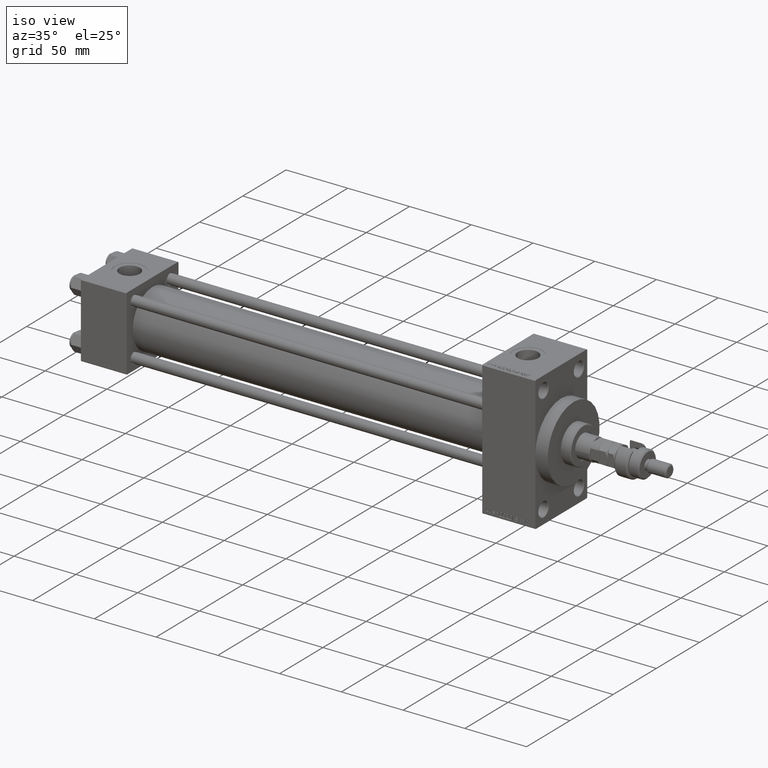
[diagram: clean part render]
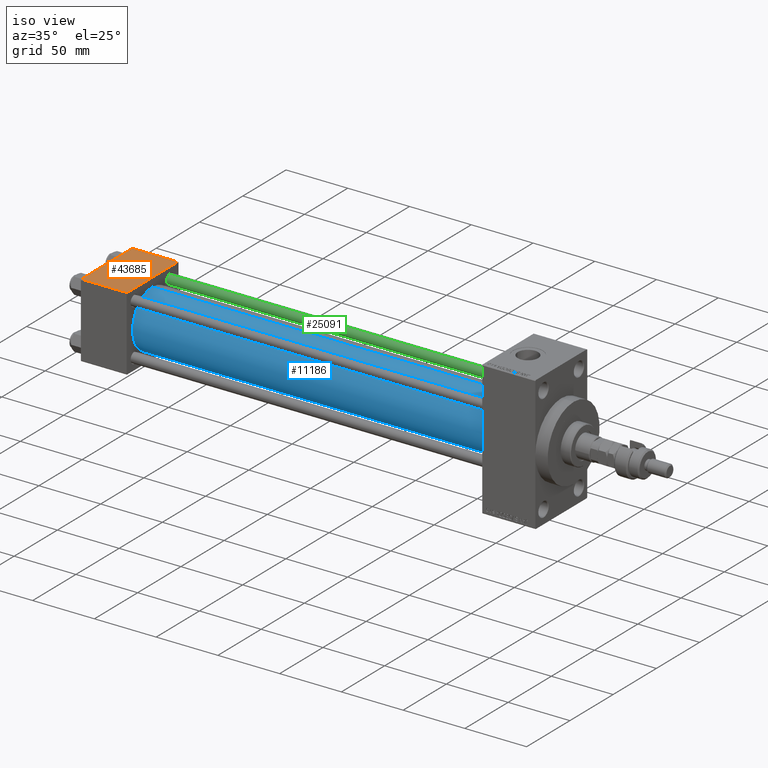
[diagram: same view with three faces highlighted in distinct colors, each labeled with its STEP entity id]
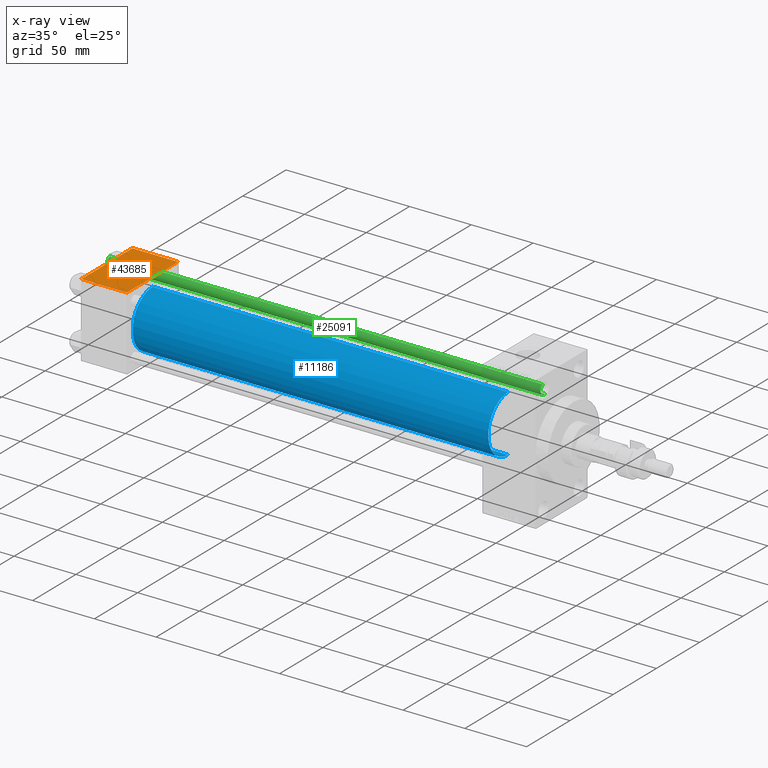
[diagram: x-ray of the same camera — body ghosted, the three highlighted faces saturated]
A machine part, iso view with three faces highlighted in distinct colors.
The next image is the same camera in x-ray (body ghosted, the three faces saturated) — at least one of them is partly hidden behind the body in this view.
Their STEP definitions:

[orange] entity #43685 — the highlighted planar face has unit normal (0, 0, -1).
#1657 = ORIENTED_EDGE ( 'NONE', *, *, #44762, .T. ) ;
#1691 = VECTOR ( 'NONE', #25255, 1000.000000000000000 ) ;
#1908 = DIRECTION ( 'NONE',  ( 0.000000000000000000, -1.000000000000000000, -1.156482317317871725E-16 ) ) ;
#3038 = VERTEX_POINT ( 'NONE', #14056 ) ;
#3897 = AXIS2_PLACEMENT_3D ( 'NONE', #9711, #41051, #37625 ) ;
#5168 = CARTESIAN_POINT ( 'NONE',  ( 37.00000000000000000, -29.49999999999998579, 29.99999999999999289 ) ) ;
#5217 = CARTESIAN_POINT ( 'NONE',  ( 37.00000000000000000, -29.50000000000000000, 29.99999999999999289 ) ) ;
#6295 = CARTESIAN_POINT ( 'NONE',  ( 18.50000000000000000, -3.469446951953614978E-15, 29.99999999999999645 ) ) ;
#8222 = VERTEX_POINT ( 'NONE', #16243 ) ;
#8398 = VERTEX_POINT ( 'NONE', #5168 ) ;
#9711 = CARTESIAN_POINT ( 'NONE',  ( 18.50000000000000000, -3.469446951953614978E-15, 29.99999999999999645 ) ) ;
#9937 = PLANE ( 'NONE',  #21890 ) ;
#10647 = EDGE_CURVE ( 'NONE', #8222, #26493, #51101, .T. ) ;
#10779 = CARTESIAN_POINT ( 'NONE',  ( 0.000000000000000000, -29.49999999999998579, 29.99999999999999289 ) ) ;
#12998 = EDGE_CURVE ( 'NONE', #52115, #8398, #49845, .T. ) ;
#14056 = CARTESIAN_POINT ( 'NONE',  ( 30.50000000000000000, -3.469446951953614978E-15, 29.99999999999999645 ) ) ;
#14510 = DIRECTION ( 'NONE',  ( 0.000000000000000000, -1.000000000000000000, -1.156482317317871725E-16 ) ) ;
#14562 = EDGE_CURVE ( 'NONE', #52115, #8222, #41313, .T. ) ;
#15217 = EDGE_LOOP ( 'NONE', ( #41175, #37720 ) ) ;
#15259 = EDGE_LOOP ( 'NONE', ( #18696, #1657, #28492, #51141 ) ) ;
#16243 = CARTESIAN_POINT ( 'NONE',  ( 0.000000000000000000, 29.49999999999999289, 30.00000000000000000 ) ) ;
#16323 = CARTESIAN_POINT ( 'NONE',  ( 37.00000000000000000, 29.49999999999999289, 30.00000000000000000 ) ) ;
#18448 = EDGE_CURVE ( 'NONE', #41944, #3038, #42017, .T. ) ;
#18696 = ORIENTED_EDGE ( 'NONE', *, *, #10647, .T. ) ;
#20339 = CARTESIAN_POINT ( 'NONE',  ( 6.499999999999997335, -1.999870792976790833E-15, 29.99999999999999645 ) ) ;
#21890 = AXIS2_PLACEMENT_3D ( 'NONE', #42061, #22305, #29942 ) ;
#22305 = DIRECTION ( 'NONE',  ( 0.000000000000000000, 1.156482317317871725E-16, -1.000000000000000000 ) ) ;
#22367 = DIRECTION ( 'NONE',  ( 0.000000000000000000, 0.000000000000000000, 1.000000000000000000 ) ) ;
#24982 = LINE ( 'NONE', #5217, #45351 ) ;
#25255 = DIRECTION ( 'NONE',  ( -1.000000000000000000, 0.000000000000000000, 0.000000000000000000 ) ) ;
#26059 = AXIS2_PLACEMENT_3D ( 'NONE', #6295, #22367, #46588 ) ;
#26493 = VERTEX_POINT ( 'NONE', #10779 ) ;
#28492 = ORIENTED_EDGE ( 'NONE', *, *, #12998, .F. ) ;
#29942 = DIRECTION ( 'NONE',  ( 0.000000000000000000, 1.000000000000000000, 1.156482317317871725E-16 ) ) ;
#33363 = FACE_OUTER_BOUND ( 'NONE', #15259, .T. ) ;
#33929 = CARTESIAN_POINT ( 'NONE',  ( 0.000000000000000000, 29.49999999999999289, 30.00000000000000000 ) ) ;
#34775 = CARTESIAN_POINT ( 'NONE',  ( 0.000000000000000000, 29.99999999999999289, 30.00000000000000000 ) ) ;
#35780 = EDGE_CURVE ( 'NONE', #3038, #41944, #45102, .T. ) ;
#37625 = DIRECTION ( 'NONE',  ( 1.000000000000000000, 0.000000000000000000, 0.000000000000000000 ) ) ;
#37720 = ORIENTED_EDGE ( 'NONE', *, *, #18448, .F. ) ;
#37844 = FACE_BOUND ( 'NONE', #15217, .T. ) ;
#37996 = CARTESIAN_POINT ( 'NONE',  ( 37.00000000000000000, 29.99999999999999289, 30.00000000000000000 ) ) ;
#41051 = DIRECTION ( 'NONE',  ( 0.000000000000000000, 0.000000000000000000, 1.000000000000000000 ) ) ;
#41175 = ORIENTED_EDGE ( 'NONE', *, *, #35780, .F. ) ;
#41212 = VECTOR ( 'NONE', #14510, 1000.000000000000000 ) ;
#41313 = LINE ( 'NONE', #33929, #1691 ) ;
#41944 = VERTEX_POINT ( 'NONE', #20339 ) ;
#42017 = CIRCLE ( 'NONE', #26059, 12.00000000000000000 ) ;
#42061 = CARTESIAN_POINT ( 'NONE',  ( 37.00000000000000000, 29.99999999999999289, 30.00000000000000000 ) ) ;
#43685 = ADVANCED_FACE ( 'NONE', ( #37844, #33363 ), #9937, .F. ) ;
#44762 = EDGE_CURVE ( 'NONE', #26493, #8398, #24982, .T. ) ;
#45102 = CIRCLE ( 'NONE', #3897, 12.00000000000000000 ) ;
#45351 = VECTOR ( 'NONE', #46035, 1000.000000000000000 ) ;
#46035 = DIRECTION ( 'NONE',  ( 1.000000000000000000, 0.000000000000000000, 0.000000000000000000 ) ) ;
#46588 = DIRECTION ( 'NONE',  ( 1.000000000000000000, 0.000000000000000000, 0.000000000000000000 ) ) ;
#47051 = VECTOR ( 'NONE', #1908, 1000.000000000000000 ) ;
#49845 = LINE ( 'NONE', #37996, #47051 ) ;
#51101 = LINE ( 'NONE', #34775, #41212 ) ;
#51141 = ORIENTED_EDGE ( 'NONE', *, *, #14562, .T. ) ;
#52115 = VERTEX_POINT ( 'NONE', #16323 ) ;

[blue] entity #11186 — the highlighted cylindrical surface (edge-blend (fillet) strip) has radius 23 mm, axis along (-1, -0, -0).
#2351 = VERTEX_POINT ( 'NONE', #49997 ) ;
#2843 = VERTEX_POINT ( 'NONE', #39373 ) ;
#5104 = VERTEX_POINT ( 'NONE', #31773 ) ;
#5915 = AXIS2_PLACEMENT_3D ( 'NONE', #46639, #26627, #6607 ) ;
#6607 = DIRECTION ( 'NONE',  ( 0.000000000000000000, 0.000000000000000000, 1.000000000000000000 ) ) ;
#7461 = CARTESIAN_POINT ( 'NONE',  ( 324.9999999999999432, -2.602085213965210642E-15, 0.000000000000000000 ) ) ;
#11186 = ADVANCED_FACE ( 'NONE', ( #23518 ), #39579, .T. ) ;
#11231 = LINE ( 'NONE', #40688, #26888 ) ;
#11945 = DIRECTION ( 'NONE',  ( 0.000000000000000000, 0.000000000000000000, -1.000000000000000000 ) ) ;
#12346 = EDGE_CURVE ( 'NONE', #5104, #2843, #11231, .T. ) ;
#12994 = VECTOR ( 'NONE', #19414, 1000.000000000000000 ) ;
#13658 = ORIENTED_EDGE ( 'NONE', *, *, #31946, .F. ) ;
#14399 = CIRCLE ( 'NONE', #30348, 23.00000000000000000 ) ;
#14879 = ORIENTED_EDGE ( 'NONE', *, *, #25236, .F. ) ;
#18259 = CARTESIAN_POINT ( 'NONE',  ( 324.9999999999999432, -2.602085213965210642E-15, 0.000000000000000000 ) ) ;
#18897 = LINE ( 'NONE', #43386, #12994 ) ;
#19414 = DIRECTION ( 'NONE',  ( -1.000000000000000000, -0.000000000000000000, -0.000000000000000000 ) ) ;
#20662 = DIRECTION ( 'NONE',  ( -1.000000000000000000, -0.000000000000000000, -0.000000000000000000 ) ) ;
#23271 = DIRECTION ( 'NONE',  ( 1.000000000000000000, 0.000000000000000000, 0.000000000000000000 ) ) ;
#23518 = FACE_OUTER_BOUND ( 'NONE', #25964, .T. ) ;
#25236 = EDGE_CURVE ( 'NONE', #5104, #41510, #14399, .T. ) ;
#25964 = EDGE_LOOP ( 'NONE', ( #13658, #14879, #28362, #50197 ) ) ;
#26627 = DIRECTION ( 'NONE',  ( 1.000000000000000000, -0.000000000000000000, 0.000000000000000000 ) ) ;
#26888 = VECTOR ( 'NONE', #20662, 1000.000000000000000 ) ;
#28362 = ORIENTED_EDGE ( 'NONE', *, *, #12346, .T. ) ;
#30348 = AXIS2_PLACEMENT_3D ( 'NONE', #7461, #23271, #11945 ) ;
#31773 = CARTESIAN_POINT ( 'NONE',  ( 324.9999999999999432, -2.602085213965210642E-15, 23.00000000000000000 ) ) ;
#31946 = EDGE_CURVE ( 'NONE', #41510, #2351, #18897, .T. ) ;
#34321 = DIRECTION ( 'NONE',  ( -1.000000000000000000, -0.000000000000000000, -0.000000000000000000 ) ) ;
#39373 = CARTESIAN_POINT ( 'NONE',  ( 36.99999999999997868, -2.602085213965210642E-15, 23.00000000000000000 ) ) ;
#39579 = CYLINDRICAL_SURFACE ( 'NONE', #43650, 23.00000000000000000 ) ;
#40688 = CARTESIAN_POINT ( 'NONE',  ( 324.9999999999999432, -2.602085213965210642E-15, 23.00000000000000000 ) ) ;
#41510 = VERTEX_POINT ( 'NONE', #45279 ) ;
#43386 = CARTESIAN_POINT ( 'NONE',  ( 324.9999999999999432, 2.146024240737016609E-16, -23.00000000000000000 ) ) ;
#43650 = AXIS2_PLACEMENT_3D ( 'NONE', #18259, #34321, #50388 ) ;
#45279 = CARTESIAN_POINT ( 'NONE',  ( 324.9999999999999432, 2.146024240737016609E-16, -23.00000000000000000 ) ) ;
#46616 = EDGE_CURVE ( 'NONE', #2843, #2351, #47106, .T. ) ;
#46639 = CARTESIAN_POINT ( 'NONE',  ( 36.99999999999997868, -2.602085213965210642E-15, 0.000000000000000000 ) ) ;
#47106 = CIRCLE ( 'NONE', #5915, 23.00000000000000000 ) ;
#49997 = CARTESIAN_POINT ( 'NONE',  ( 36.99999999999997868, 2.146024240737016609E-16, -23.00000000000000000 ) ) ;
#50197 = ORIENTED_EDGE ( 'NONE', *, *, #46616, .T. ) ;
#50388 = DIRECTION ( 'NONE',  ( 0.000000000000000000, 0.000000000000000000, 1.000000000000000000 ) ) ;

[green] entity #25091 — the highlighted cylindrical surface (edge-blend (fillet) strip) has radius 4 mm, axis along (-1, -0, 0).
#3079 = DIRECTION ( 'NONE',  ( 1.000000000000000000, 0.000000000000000000, 0.000000000000000000 ) ) ;
#5797 = VERTEX_POINT ( 'NONE', #46374 ) ;
#13038 = DIRECTION ( 'NONE',  ( -1.000000000000000000, 0.000000000000000000, 0.000000000000000000 ) ) ;
#13296 = CARTESIAN_POINT ( 'NONE',  ( 0.000000000000000000, 0.000000000000000000, 352.0000000000000000 ) ) ;
#14286 = VERTEX_POINT ( 'NONE', #50319 ) ;
#14825 = ORIENTED_EDGE ( 'NONE', *, *, #30641, .T. ) ;
#16003 = CARTESIAN_POINT ( 'NONE',  ( -4.000000000000000000, 0.000000000000000000, 352.0000000000000000 ) ) ;
#19962 = EDGE_CURVE ( 'NONE', #14286, #31452, #29721, .T. ) ;
#20322 = ORIENTED_EDGE ( 'NONE', *, *, #19962, .F. ) ;
#21565 = CARTESIAN_POINT ( 'NONE',  ( -4.000000000000000000, 0.000000000000000000, 351.5000000000000000 ) ) ;
#21690 = ORIENTED_EDGE ( 'NONE', *, *, #32592, .T. ) ;
#24620 = EDGE_CURVE ( 'NONE', #51207, #5797, #40225, .T. ) ;
#25061 = CARTESIAN_POINT ( 'NONE',  ( 4.000000000000000000, 4.898587196589412829E-16, 0.5000000000000004441 ) ) ;
#25091 = ADVANCED_FACE ( 'NONE', ( #45414 ), #49618, .T. ) ;
#26130 = DIRECTION ( 'NONE',  ( 1.000000000000000000, 0.000000000000000000, 0.000000000000000000 ) ) ;
#26389 = CARTESIAN_POINT ( 'NONE',  ( 0.000000000000000000, 0.000000000000000000, 351.5000000000000000 ) ) ;
#29721 = LINE ( 'NONE', #50262, #41226 ) ;
#30641 = EDGE_CURVE ( 'NONE', #5797, #31452, #51605, .T. ) ;
#31452 = VERTEX_POINT ( 'NONE', #25061 ) ;
#32592 = EDGE_CURVE ( 'NONE', #14286, #51207, #48333, .T. ) ;
#33742 = AXIS2_PLACEMENT_3D ( 'NONE', #13296, #40685, #13038 ) ;
#33765 = DIRECTION ( 'NONE',  ( 0.000000000000000000, 0.000000000000000000, -1.000000000000000000 ) ) ;
#39417 = CARTESIAN_POINT ( 'NONE',  ( 0.000000000000000000, 0.000000000000000000, 0.5000000000000004441 ) ) ;
#40225 = LINE ( 'NONE', #16003, #48104 ) ;
#40685 = DIRECTION ( 'NONE',  ( -0.000000000000000000, -0.000000000000000000, -1.000000000000000000 ) ) ;
#40695 = AXIS2_PLACEMENT_3D ( 'NONE', #39417, #49782, #3079 ) ;
#41226 = VECTOR ( 'NONE', #45791, 1000.000000000000000 ) ;
#43236 = EDGE_LOOP ( 'NONE', ( #20322, #21690, #44241, #14825 ) ) ;
#44241 = ORIENTED_EDGE ( 'NONE', *, *, #24620, .T. ) ;
#45414 = FACE_OUTER_BOUND ( 'NONE', #43236, .T. ) ;
#45791 = DIRECTION ( 'NONE',  ( -0.000000000000000000, -0.000000000000000000, -1.000000000000000000 ) ) ;
#46374 = CARTESIAN_POINT ( 'NONE',  ( -4.000000000000000000, 0.000000000000000000, 0.5000000000000004441 ) ) ;
#48104 = VECTOR ( 'NONE', #48130, 1000.000000000000000 ) ;
#48130 = DIRECTION ( 'NONE',  ( -0.000000000000000000, -0.000000000000000000, -1.000000000000000000 ) ) ;
#48333 = CIRCLE ( 'NONE', #49181, 4.000000000000000000 ) ;
#49181 = AXIS2_PLACEMENT_3D ( 'NONE', #26389, #33765, #26130 ) ;
#49618 = CYLINDRICAL_SURFACE ( 'NONE', #33742, 4.000000000000000000 ) ;
#49782 = DIRECTION ( 'NONE',  ( -0.000000000000000000, -0.000000000000000000, 1.000000000000000000 ) ) ;
#50262 = CARTESIAN_POINT ( 'NONE',  ( 4.000000000000000000, 4.898587196589412829E-16, 352.0000000000000000 ) ) ;
#50319 = CARTESIAN_POINT ( 'NONE',  ( 4.000000000000000000, 4.898587196589412829E-16, 351.5000000000000000 ) ) ;
#51207 = VERTEX_POINT ( 'NONE', #21565 ) ;
#51605 = CIRCLE ( 'NONE', #40695, 4.000000000000000000 ) ;